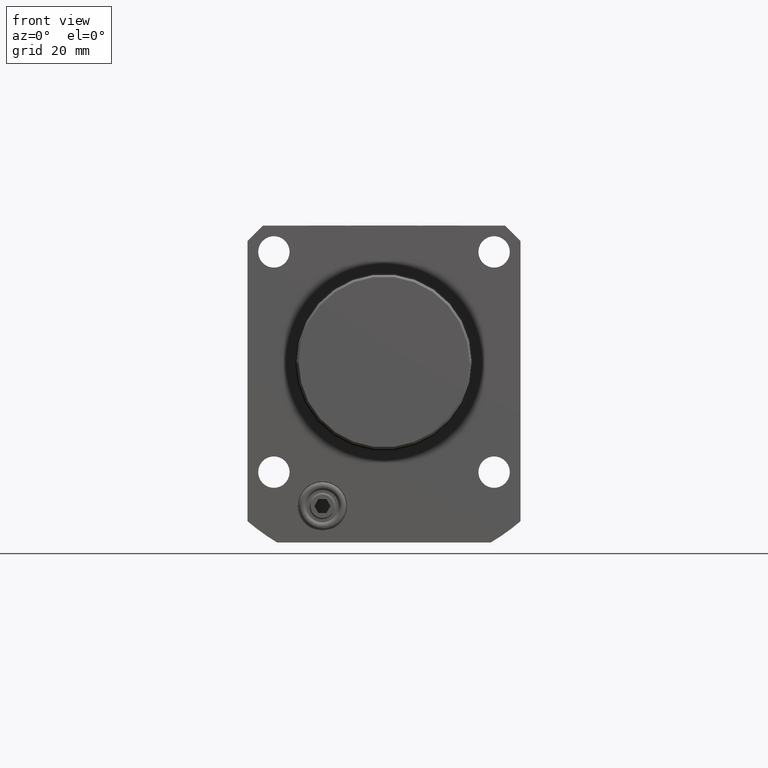
[diagram: clean part render]
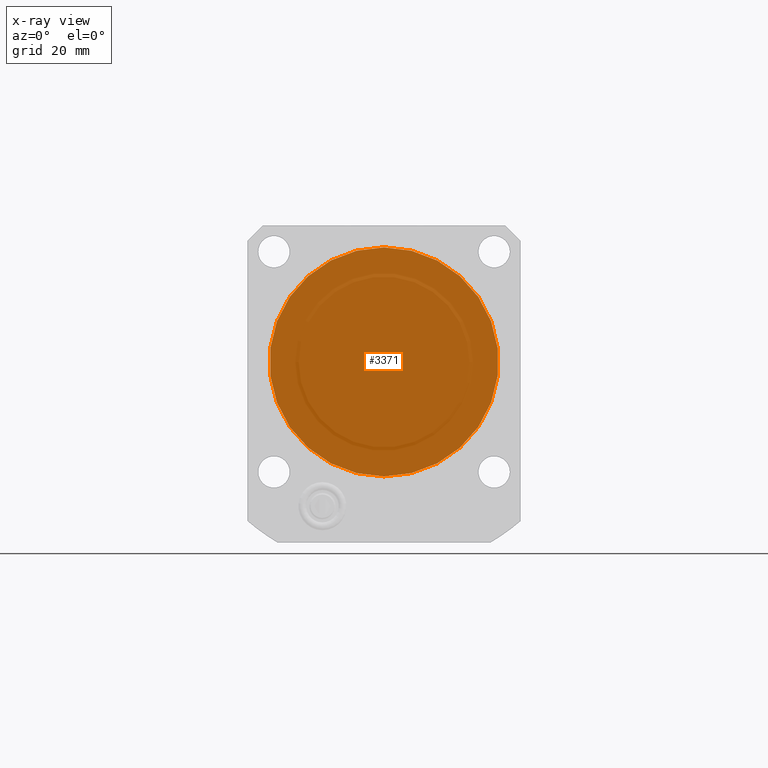
[diagram: x-ray — body ghosted, one internal face saturated and labeled with its STEP entity id]
A machine part, front view, then the same camera in x-ray: the body is ghosted and one INTERNAL B-rep face — a face not visible from any outside direction — is saturated and labeled: STEP entity #3371.
In plain terms, the highlighted planar face has unit normal (0, -1, 0).
Its self-contained STEP definition (entity closure, byte-faithful):
#1692=CARTESIAN_POINT('',(0.E0,8.27E-1,0.E0));
#1693=DIRECTION('',(0.E0,1.E0,0.E0));
#1694=DIRECTION('',(0.E0,0.E0,-1.E0));
#1695=AXIS2_PLACEMENT_3D('',#1692,#1693,#1694);
#1715=CARTESIAN_POINT('',(0.E0,8.27E-1,0.E0));
#1716=DIRECTION('',(0.E0,-1.E0,0.E0));
#1717=DIRECTION('',(0.E0,0.E0,-1.E0));
#1718=AXIS2_PLACEMENT_3D('',#1715,#1716,#1717);
#2036=CARTESIAN_POINT('',(0.E0,8.27E-1,-1.024E0));
#2037=CARTESIAN_POINT('',(0.E0,8.27E-1,1.024E0));
#2038=VERTEX_POINT('',#2036);
#2039=VERTEX_POINT('',#2037);
#3362=CARTESIAN_POINT('',(0.E0,8.27E-1,0.E0));
#3363=DIRECTION('',(0.E0,-1.E0,0.E0));
#3364=DIRECTION('',(0.E0,0.E0,1.E0));
#3365=AXIS2_PLACEMENT_3D('',#3362,#3363,#3364);
#3366=PLANE('',#3365);
#3367=ORIENTED_EDGE('',*,*,#3342,.F.);
#3368=ORIENTED_EDGE('',*,*,#3356,.T.);
#3369=EDGE_LOOP('',(#3367,#3368));
#3370=FACE_OUTER_BOUND('',#3369,.F.);
#1696=CIRCLE('',#1695,1.024E0);
#1719=CIRCLE('',#1718,1.024E0);
#3342=EDGE_CURVE('',#2038,#2039,#1696,.T.);
#3356=EDGE_CURVE('',#2038,#2039,#1719,.T.);
#3371=ADVANCED_FACE('',(#3370),#3366,.F.);